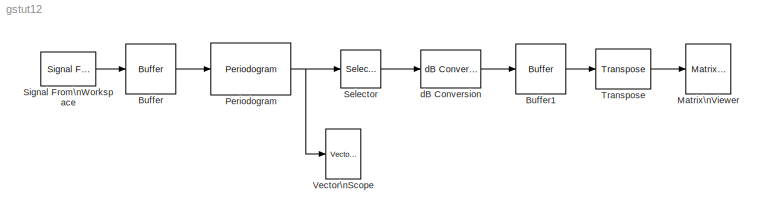
MODEL gstut12
KIND model
BLOCK [Reference] Buffer  REF=dspbuff3/Buffer
  N = 128
  Ports = [1, 1]
  SourceBlock = dspbuff3/Buffer
  SourceType = Buffer
  V = 48
  ic = 0
BLOCK [Reference] Buffer1  REF=dspbuff3/Buffer
  N = 64
  Ports = [1, 1]
  SourceBlock = dspbuff3/Buffer
  SourceType = Buffer
  V = 0
  ic = 0
BLOCK [Reference] Matrix\nViewer  REF=dspsnks4/Matrix\nViewer
  AxisColorbar = on
  AxisOrigin = Upper left corner
  AxisParams = off
  AxisZoom = off
  CMapStr = hot(256)
  FigPos = get(0,'defaultfigureposition')
  ImageParams = off
  Ports = [1]
  ShowPortLabels = off
  SourceBlock = dspsnks4/Matrix\nViewer
  SourceType = Matrix Viewer
  XLabel = X-axis
  YLabel = Y-axis
  YMax = 1.0
  YMin = -1.0
  ZLabel = Z-axis
BLOCK [Reference] Periodogram  REF=dspspect3/Periodogram
  Ports = [1, 1]
  Rs = 50
  ShowPortLabels = on
  SourceBlock = dspspect3/Periodogram
  SourceType = Periodogram
  beta = 5
  fftsize = 256
  inheritFFT = on
  navg = 2
  winsamp = Periodic
  wintype = Hamming
BLOCK [Selector] Selector
  Elements = [1 3]
  InputPortWidth = 3
  Ports = [1, 1]
BLOCK [Reference] Signal From\nWorkspace  REF=dspsrcs4/Signal From\nWorkspace
  OutputAfterFinalValue = Setting to zero
  Ports = [0, 1]
  ShowPortLabels = on
  SourceBlock = dspsrcs4/Signal From\nWorkspace
  SourceType = Signal From Workspace
  Ts = 1/8000
  X = mtlb
  nsamps = 80
BLOCK [Reference] Transpose  REF=dspmtrx3/Transpose
  Hermitian = off
  Ports = [1, 1]
  SourceBlock = dspmtrx3/Transpose
  SourceType = Transpose
  overflowFlag = on
BLOCK [Reference] Vector\nScope  REF=dspsnks4/Vector\nScope
  AxisGrid = on
  AxisLegend = off
  AxisProperties = off
  AxisZoom = off
  DisplayProperties = off
  Domain = Frequency
  FigPos = get(0,'defaultfigureposition')
  FrameNumber = on
  HorizSpan = 1
  InheritXIncr = on
  LineProperties = off
  Memory = off
  OpenScopeAtSimStart = on
  OpenScopeImmediately = off
  Ports = [1]
  ScopeProperties = on
  ShowPortLabels = off
  SourceBlock = dspsnks4/Vector\nScope
  SourceType = Vector Scope
  XIncr = 1
  XLabel = Time
  XRange = [0...Fs/2]
  XUnits = Hertz
  YLabel = Magnitude, dB
  YMax = 5.11522162658351
  YMin = -49.3106585941378
  YUnits = dB
BLOCK [Reference] dB Conversion  REF=dspmathops/dB Conversion
  Ports = [1, 1]
  R = 1
  ShowPortLabels = on
  SourceBlock = dspmathops/dB Conversion
  SourceType = dB Conversion
  dBtype = dB
  fuzz = off
  intype = Amplitude
LINE Buffer1:1 -> Transpose:1
LINE Buffer:1 -> Periodogram:1
NET Periodogram:1 -> Selector:1, Vector\nScope:1
LINE Selector:1 -> dB Conversion:1
LINE Signal From\nWorkspace:1 -> Buffer:1
LINE Transpose:1 -> Matrix\nViewer:1
LINE dB Conversion:1 -> Buffer1:1
note: NET lines group one-source signal fan-out (src -> all destinations, sorted); 1:1 wires keep LINE
